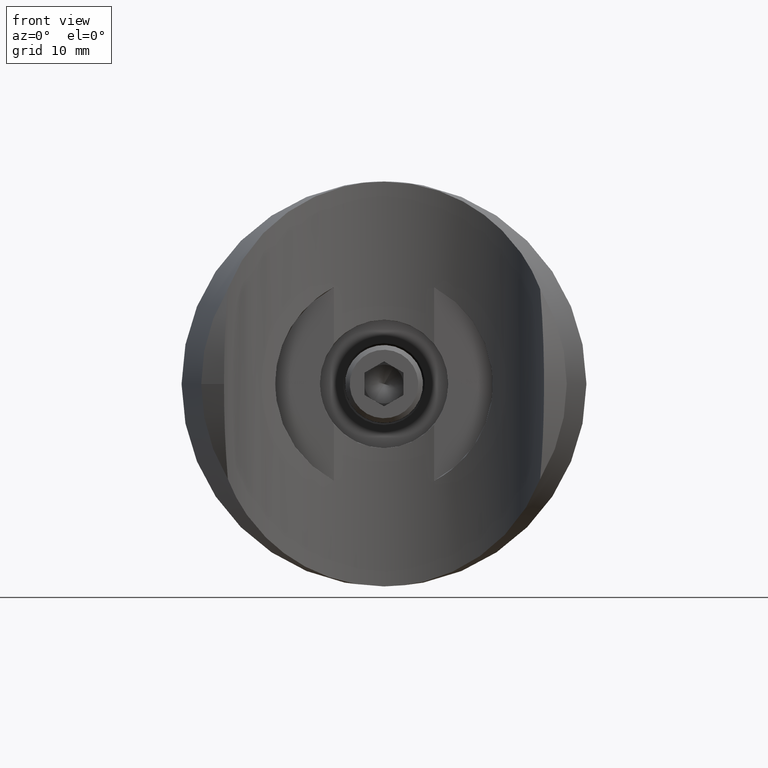
[diagram: clean part render]
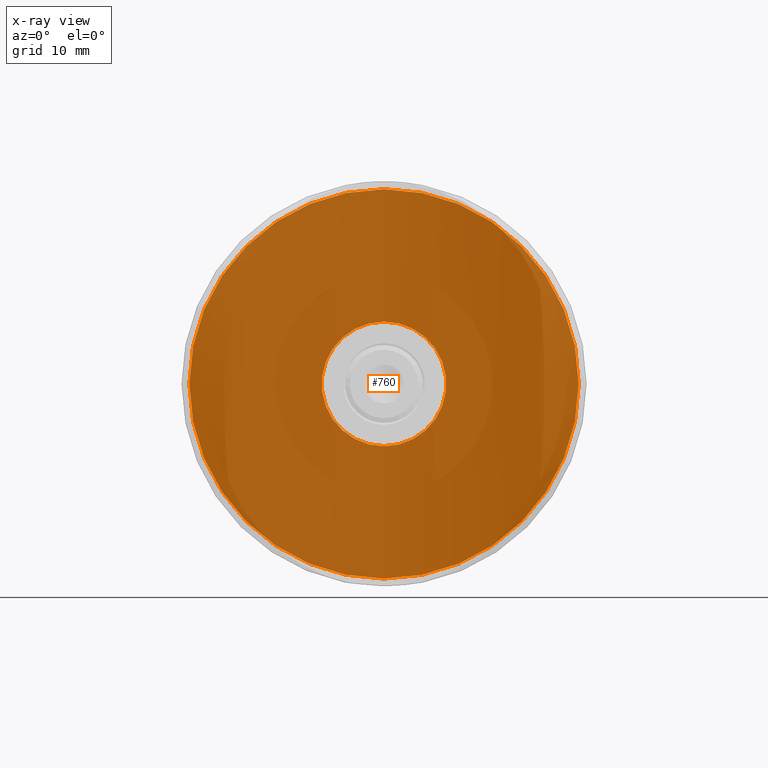
[diagram: x-ray — body ghosted, one internal face saturated and labeled with its STEP entity id]
A machine part, front view, then the same camera in x-ray: the body is ghosted and one INTERNAL B-rep face — a face not visible from any outside direction — is saturated and labeled: STEP entity #760.
In plain terms, the highlighted planar face has unit normal (0, -1, 0).
Its self-contained STEP definition (entity closure, byte-faithful):
#21 = EDGE_CURVE ( 'NONE', #3210, #7386, #12405, .T. ) ;
#46 = AXIS2_PLACEMENT_3D ( 'NONE', #14755, #7429, #9881 ) ;
#297 = FACE_OUTER_BOUND ( 'NONE', #3568, .T. ) ;
#543 = DIRECTION ( 'NONE',  ( -0.000000000000000000, 1.000000000000000000, -0.000000000000000000 ) ) ;
#760 = ADVANCED_FACE ( 'NONE', ( #6813, #297 ), #11807, .F. ) ;
#1467 = EDGE_CURVE ( 'NONE', #4902, #5881, #9296, .T. ) ;
#1968 = CARTESIAN_POINT ( 'NONE',  ( 5.457486406938542366E-16, -4.000000000000000000, -8.000000000000014211 ) ) ;
#2052 = DIRECTION ( 'NONE',  ( 0.000000000000000000, 0.000000000000000000, 1.000000000000000000 ) ) ;
#2659 = ORIENTED_EDGE ( 'NONE', *, *, #10317, .F. ) ;
#3210 = VERTEX_POINT ( 'NONE', #5177 ) ;
#3568 = EDGE_LOOP ( 'NONE', ( #2659, #5889 ) ) ;
#4089 = ORIENTED_EDGE ( 'NONE', *, *, #14561, .T. ) ;
#4713 = DIRECTION ( 'NONE',  ( -0.000000000000000000, 1.000000000000000000, -0.000000000000000000 ) ) ;
#4902 = VERTEX_POINT ( 'NONE', #13688 ) ;
#5177 = CARTESIAN_POINT ( 'NONE',  ( 1.525466080011738479E-15, -4.000000000000000000, 8.000000000000014211 ) ) ;
#5881 = VERTEX_POINT ( 'NONE', #12479 ) ;
#5889 = ORIENTED_EDGE ( 'NONE', *, *, #1467, .F. ) ;
#5937 = AXIS2_PLACEMENT_3D ( 'NONE', #8519, #543, #10322 ) ;
#6143 = DIRECTION ( 'NONE',  ( 0.000000000000000000, 0.000000000000000000, 1.000000000000000000 ) ) ;
#6168 = CIRCLE ( 'NONE', #5937, 25.00000000000000000 ) ;
#6308 = CARTESIAN_POINT ( 'NONE',  ( 5.457486406938542366E-16, -4.000000000000000000, 0.000000000000000000 ) ) ;
#6813 = FACE_BOUND ( 'NONE', #9143, .T. ) ;
#7032 = CARTESIAN_POINT ( 'NONE',  ( 5.457486406938542366E-16, -4.000000000000000000, 0.000000000000000000 ) ) ;
#7386 = VERTEX_POINT ( 'NONE', #1968 ) ;
#7429 = DIRECTION ( 'NONE',  ( -0.000000000000000000, 1.000000000000000000, -0.000000000000000000 ) ) ;
#8519 = CARTESIAN_POINT ( 'NONE',  ( 5.457486406938542366E-16, -4.000000000000000000, 0.000000000000000000 ) ) ;
#9143 = EDGE_LOOP ( 'NONE', ( #4089, #12344 ) ) ;
#9195 = AXIS2_PLACEMENT_3D ( 'NONE', #7032, #4713, #13186 ) ;
#9296 = CIRCLE ( 'NONE', #13790, 25.00000000000000000 ) ;
#9372 = AXIS2_PLACEMENT_3D ( 'NONE', #13092, #15547, #2052 ) ;
#9881 = DIRECTION ( 'NONE',  ( 0.000000000000000000, 0.000000000000000000, 1.000000000000000000 ) ) ;
#10317 = EDGE_CURVE ( 'NONE', #5881, #4902, #6168, .T. ) ;
#10322 = DIRECTION ( 'NONE',  ( 0.000000000000000000, 0.000000000000000000, 1.000000000000000000 ) ) ;
#10964 = DIRECTION ( 'NONE',  ( -0.000000000000000000, 1.000000000000000000, -0.000000000000000000 ) ) ;
#11807 = PLANE ( 'NONE',  #9372 ) ;
#12344 = ORIENTED_EDGE ( 'NONE', *, *, #21, .T. ) ;
#12405 = CIRCLE ( 'NONE', #46, 8.000000000000014211 ) ;
#12479 = CARTESIAN_POINT ( 'NONE',  ( 5.457486406938542366E-16, -4.000000000000000000, 25.00000000000000000 ) ) ;
#13064 = CIRCLE ( 'NONE', #9195, 8.000000000000014211 ) ;
#13092 = CARTESIAN_POINT ( 'NONE',  ( 7.000000000000000888, -4.000000000000000000, 0.000000000000000000 ) ) ;
#13186 = DIRECTION ( 'NONE',  ( 0.000000000000000000, 0.000000000000000000, 1.000000000000000000 ) ) ;
#13688 = CARTESIAN_POINT ( 'NONE',  ( 3.607365638562237181E-15, -4.000000000000000000, -25.00000000000000000 ) ) ;
#13790 = AXIS2_PLACEMENT_3D ( 'NONE', #6308, #10964, #6143 ) ;
#14561 = EDGE_CURVE ( 'NONE', #7386, #3210, #13064, .T. ) ;
#14755 = CARTESIAN_POINT ( 'NONE',  ( 5.457486406938542366E-16, -4.000000000000000000, 0.000000000000000000 ) ) ;
#15547 = DIRECTION ( 'NONE',  ( -0.000000000000000000, 1.000000000000000000, 0.000000000000000000 ) ) ;